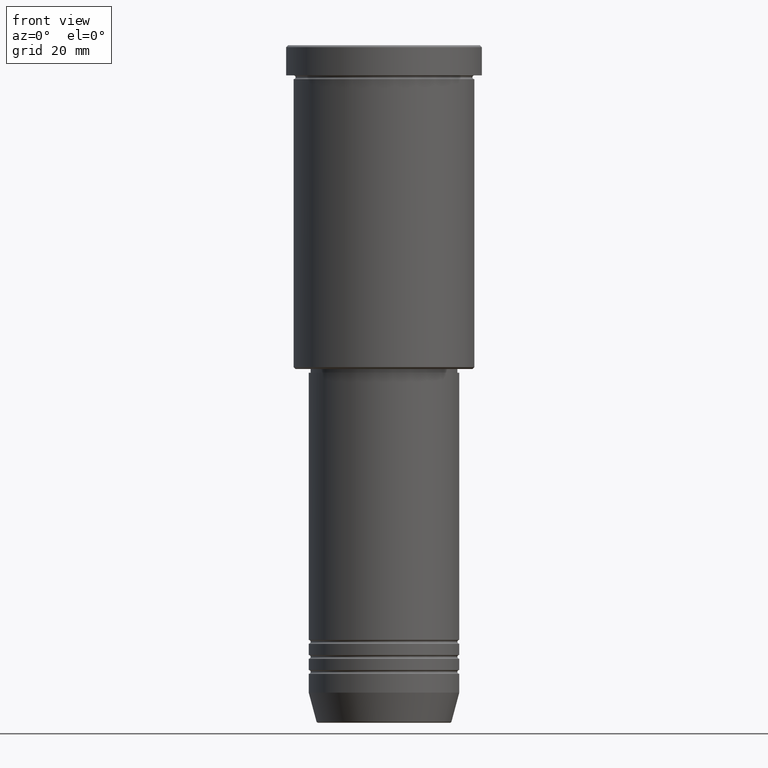
[diagram: clean part render]
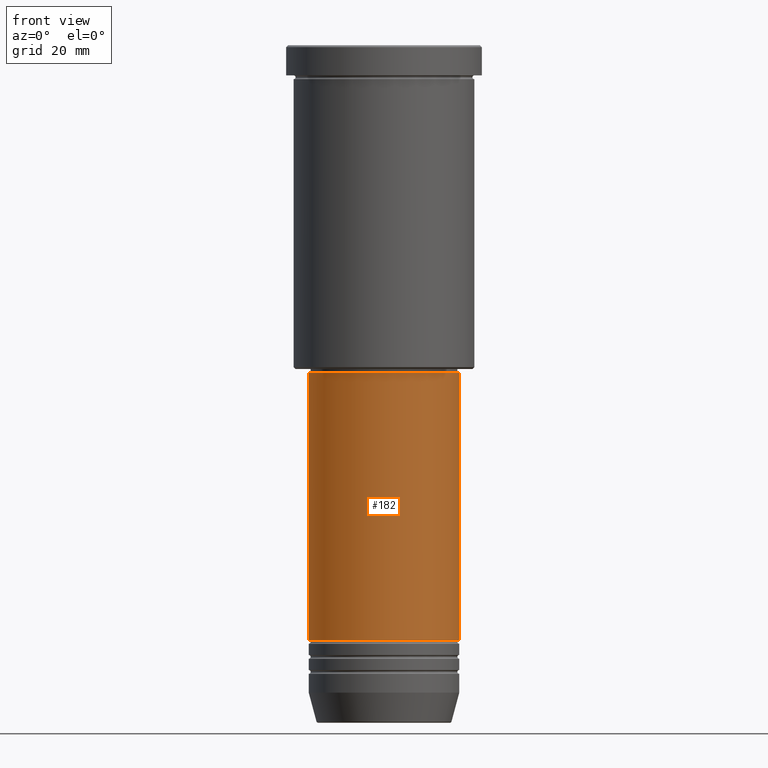
[diagram: same view with one face highlighted and labeled with its STEP entity id]
A machine part, front view. The second image highlights one B-rep face of the part: STEP entity #182.
In plain terms, the highlighted cylindrical surface (partial cylindrical patch) has radius 20 mm, axis along (-0, -0, 1).
Its self-contained STEP definition (entity closure, byte-faithful):
#14 = DIRECTION ( 'NONE',  ( -0.000000000000000000, -0.000000000000000000, 1.000000000000000000 ) ) ;
#24 = CYLINDRICAL_SURFACE ( 'NONE', #55, 20.00000000000000355 ) ;
#55 = AXIS2_PLACEMENT_3D ( 'NONE', #559, #14, #493 ) ;
#57 = ORIENTED_EDGE ( 'NONE', *, *, #599, .T. ) ;
#67 = CARTESIAN_POINT ( 'NONE',  ( 20.00000000000000355, 0.000000000000000000, -158.0000000000000000 ) ) ;
#109 = FACE_OUTER_BOUND ( 'NONE', #654, .T. ) ;
#117 = DIRECTION ( 'NONE',  ( 1.000000000000000000, 0.000000000000000000, 0.000000000000000000 ) ) ;
#182 = ADVANCED_FACE ( 'NONE', ( #109 ), #24, .T. ) ;
#236 = VERTEX_POINT ( 'NONE', #768 ) ;
#270 = DIRECTION ( 'NONE',  ( -0.000000000000000000, -0.000000000000000000, 1.000000000000000000 ) ) ;
#277 = DIRECTION ( 'NONE',  ( 1.000000000000000000, 0.000000000000000000, 0.000000000000000000 ) ) ;
#295 = CARTESIAN_POINT ( 'NONE',  ( 0.000000000000000000, 0.000000000000000000, -87.00000000000002842 ) ) ;
#296 = EDGE_CURVE ( 'NONE', #1140, #870, #457, .T. ) ;
#320 = CIRCLE ( 'NONE', #753, 20.00000000000000355 ) ;
#326 = ORIENTED_EDGE ( 'NONE', *, *, #296, .T. ) ;
#337 = CARTESIAN_POINT ( 'NONE',  ( -20.00000000000000355, 2.449293598294706907E-15, 0.000000000000000000 ) ) ;
#383 = CARTESIAN_POINT ( 'NONE',  ( 20.00000000000000355, 0.000000000000000000, -87.00000000000002842 ) ) ;
#457 = LINE ( 'NONE', #982, #1028 ) ;
#493 = DIRECTION ( 'NONE',  ( 1.000000000000000000, 0.000000000000000000, 0.000000000000000000 ) ) ;
#515 = LINE ( 'NONE', #337, #1030 ) ;
#528 = CIRCLE ( 'NONE', #895, 20.00000000000000355 ) ;
#559 = CARTESIAN_POINT ( 'NONE',  ( 0.000000000000000000, 0.000000000000000000, 0.000000000000000000 ) ) ;
#599 = EDGE_CURVE ( 'NONE', #712, #1140, #320, .T. ) ;
#641 = DIRECTION ( 'NONE',  ( -0.000000000000000000, -0.000000000000000000, 1.000000000000000000 ) ) ;
#650 = ORIENTED_EDGE ( 'NONE', *, *, #793, .F. ) ;
#654 = EDGE_LOOP ( 'NONE', ( #650, #57, #326, #946 ) ) ;
#712 = VERTEX_POINT ( 'NONE', #1018 ) ;
#753 = AXIS2_PLACEMENT_3D ( 'NONE', #1107, #270, #277 ) ;
#768 = CARTESIAN_POINT ( 'NONE',  ( -20.00000000000000355, 2.449293598294706907E-15, -87.00000000000002842 ) ) ;
#793 = EDGE_CURVE ( 'NONE', #712, #236, #515, .T. ) ;
#870 = VERTEX_POINT ( 'NONE', #383 ) ;
#895 = AXIS2_PLACEMENT_3D ( 'NONE', #295, #641, #117 ) ;
#905 = EDGE_CURVE ( 'NONE', #236, #870, #528, .T. ) ;
#946 = ORIENTED_EDGE ( 'NONE', *, *, #905, .F. ) ;
#982 = CARTESIAN_POINT ( 'NONE',  ( 20.00000000000000355, 0.000000000000000000, 0.000000000000000000 ) ) ;
#1018 = CARTESIAN_POINT ( 'NONE',  ( -20.00000000000000355, 2.449293598294706907E-15, -158.0000000000000000 ) ) ;
#1028 = VECTOR ( 'NONE', #1082, 1000.000000000000000 ) ;
#1030 = VECTOR ( 'NONE', #1169, 1000.000000000000000 ) ;
#1082 = DIRECTION ( 'NONE',  ( -0.000000000000000000, -0.000000000000000000, 1.000000000000000000 ) ) ;
#1107 = CARTESIAN_POINT ( 'NONE',  ( 0.000000000000000000, 0.000000000000000000, -158.0000000000000000 ) ) ;
#1140 = VERTEX_POINT ( 'NONE', #67 ) ;
#1169 = DIRECTION ( 'NONE',  ( -0.000000000000000000, -0.000000000000000000, 1.000000000000000000 ) ) ;